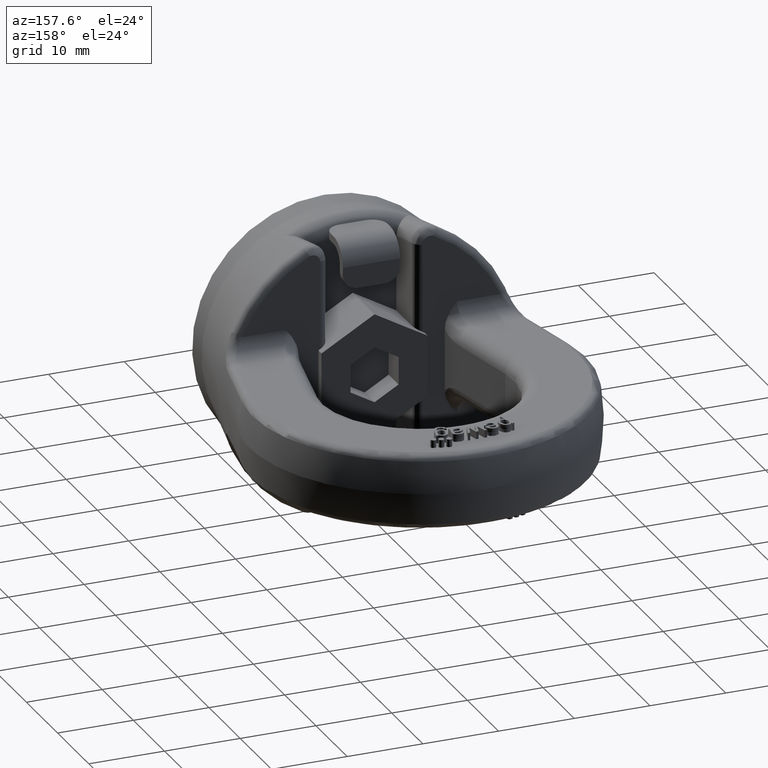
[diagram: clean part render]
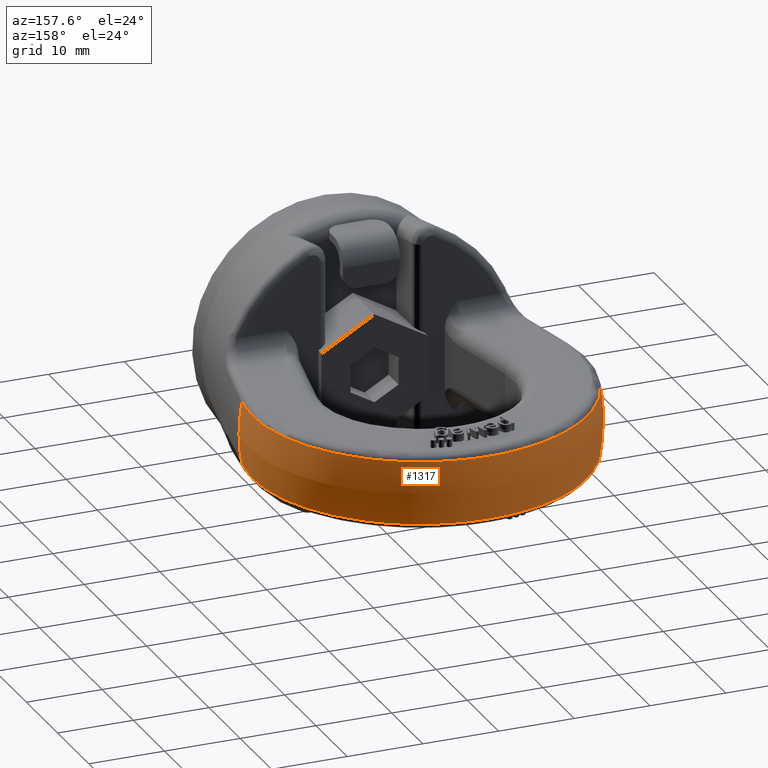
[diagram: same view with one face highlighted and labeled with its STEP entity id]
A machine part, auxiliary view. The second image highlights one B-rep face of the part: STEP entity #1317.
In plain terms, the highlighted spherical surface has radius 22.5 mm.
Its self-contained STEP definition (entity closure, byte-faithful):
#1089=SPHERICAL_SURFACE('',#5146,22.5);
#1096=FACE_OUTER_BOUND('',#1830,.T.);
#1317=ADVANCED_FACE('',(#1096),#1089,.T.);
#1676=CIRCLE('',#5134,22.073001942259);
#1680=CIRCLE('',#5138,22.073001942259);
#1685=CIRCLE('',#5144,22.1071711126161);
#1686=CIRCLE('',#5145,22.1071711126161);
#1830=EDGE_LOOP('',(#2831,#2832,#2833,#2834));
#2831=ORIENTED_EDGE('',*,*,#4372,.F.);
#2832=ORIENTED_EDGE('',*,*,#4393,.T.);
#2833=ORIENTED_EDGE('',*,*,#4382,.F.);
#2834=ORIENTED_EDGE('',*,*,#4394,.T.);
#3982=VERTEX_POINT('',#6742);
#3983=VERTEX_POINT('',#6743);
#3992=VERTEX_POINT('',#6815);
#3993=VERTEX_POINT('',#6817);
#4372=EDGE_CURVE('',#3982,#3983,#1676,.T.);
#4382=EDGE_CURVE('',#3992,#3993,#1680,.T.);
#4393=EDGE_CURVE('',#3982,#3993,#1685,.T.);
#4394=EDGE_CURVE('',#3992,#3983,#1686,.T.);
#5134=AXIS2_PLACEMENT_3D('',#6741,#5481,#5482);
#5138=AXIS2_PLACEMENT_3D('',#6816,#5489,#5490);
#5144=AXIS2_PLACEMENT_3D('',#6892,#5501,#5502);
#5145=AXIS2_PLACEMENT_3D('',#6893,#5503,#5504);
#5146=AXIS2_PLACEMENT_3D('',#6894,#5505,#5506);
#5481=DIRECTION('',(-2.40383963873025E-15,-1.,0.));
#5482=DIRECTION('',(1.,-2.35770849907234E-15,0.));
#5489=DIRECTION('',(-2.40383963873025E-15,-1.,0.));
#5490=DIRECTION('',(1.,-2.35770849907234E-15,0.));
#5501=DIRECTION('',(0.,-1.0842021724855E-16,-1.));
#5502=DIRECTION('',(0.,1.,-1.17703219498774E-16));
#5503=DIRECTION('',(-2.34291072916505E-15,-1.0842021724855E-16,1.));
#5504=DIRECTION('',(-2.78777225301435E-31,1.,1.17703219498774E-16));
#5505=DIRECTION('',(-2.34260729877288E-15,-1.,0.));
#5506=DIRECTION('',(1.,-2.46716227694479E-15,0.));
#6741=CARTESIAN_POINT('',(-6.45734671206007E-14,26.1373648723466,0.));
#6742=CARTESIAN_POINT('',(-21.6724347812021,26.1373648723467,4.18604651162793));
#6743=CARTESIAN_POINT('',(-21.6724347812019,26.1373648723466,-4.18604651162796));
#6815=CARTESIAN_POINT('',(21.6724347812021,26.1373648723467,-4.18604651162788));
#6816=CARTESIAN_POINT('',(-6.45734671206007E-14,26.1373648723466,0.));
#6817=CARTESIAN_POINT('',(21.672434781202,26.1373648723466,4.18604651162791));
#6892=CARTESIAN_POINT('',(-1.38050658413677E-30,30.5,4.18604651162791));
#6893=CARTESIAN_POINT('',(9.80753328487695E-15,30.5,-4.18604651162791));
#6894=CARTESIAN_POINT('',(-1.38050658413677E-30,30.5,0.));